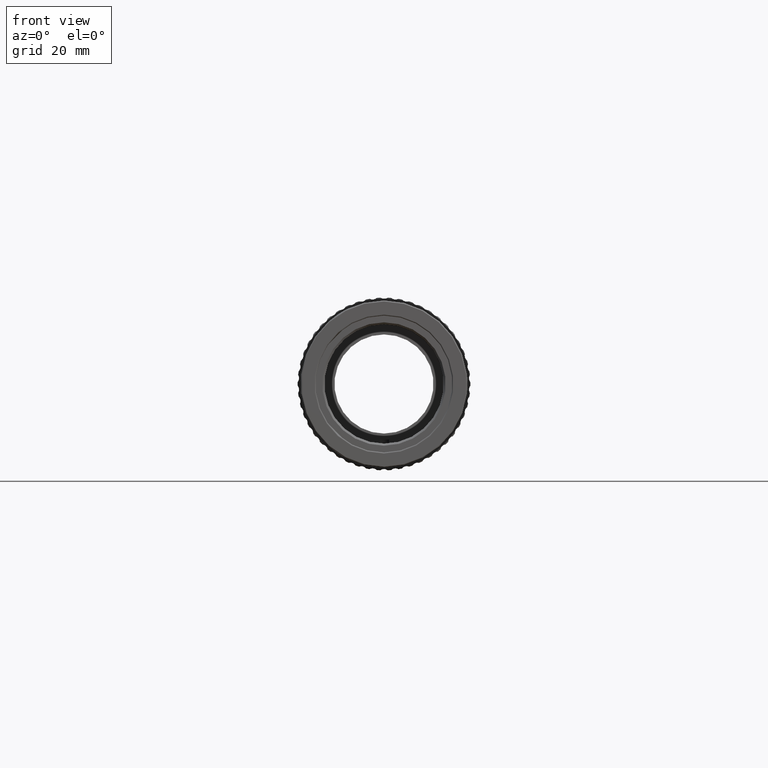
[diagram: clean part render]
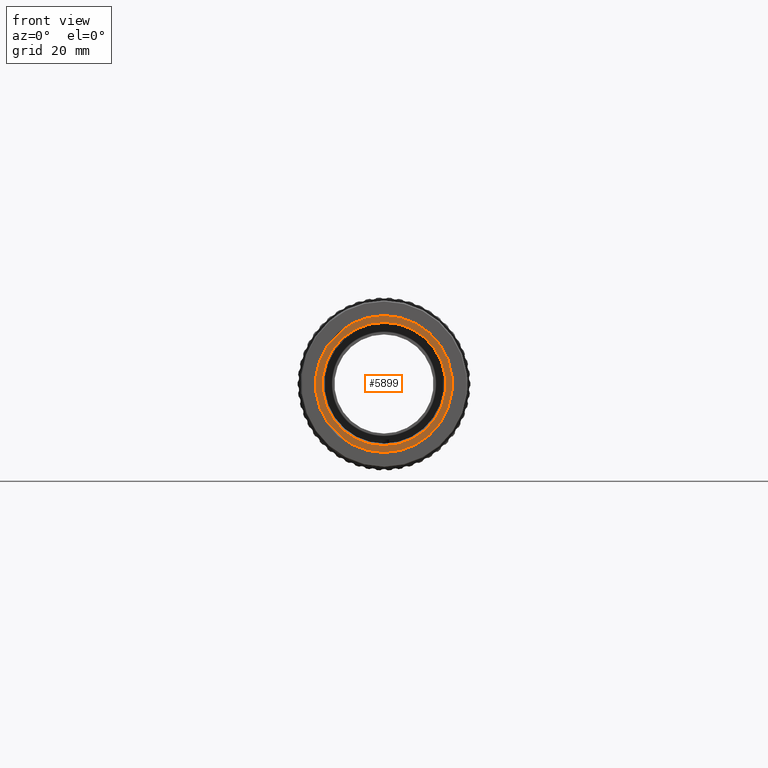
[diagram: same view with one face highlighted and labeled with its STEP entity id]
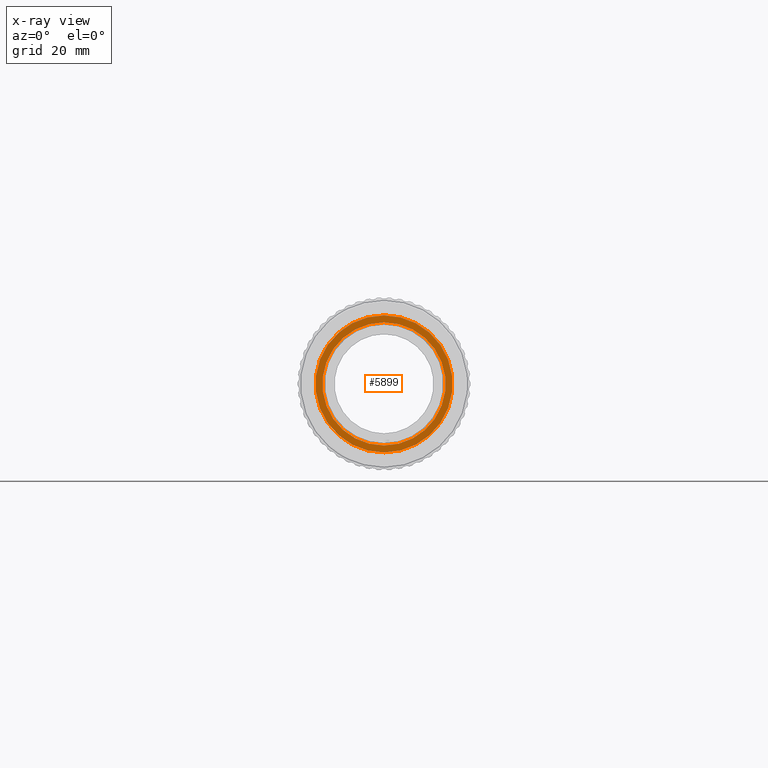
[diagram: x-ray of the same camera — body ghosted, the highlighted face saturated]
A machine part, front view. The second image highlights one B-rep face of the part: STEP entity #5899.
The next image is the same camera in x-ray: the body ghosted, the highlighted face saturated — about 0% of this face is hidden behind the body in this view.
In plain terms, the highlighted planar face has unit normal (0, -1, -0).
Its self-contained STEP definition (entity closure, byte-faithful):
#294 = PLANE ( 'NONE',  #4394 ) ;
#445 = ORIENTED_EDGE ( 'NONE', *, *, #1669, .T. ) ;
#829 = AXIS2_PLACEMENT_3D ( 'NONE', #7284, #12806, #873 ) ;
#873 = DIRECTION ( 'NONE',  ( 0.0000000000000000000, 0.0000000000000000000, -1.000000000000000000 ) ) ;
#1241 = EDGE_LOOP ( 'NONE', ( #8859 ) ) ;
#1342 = DIRECTION ( 'NONE',  ( 0.0000000000000000000, -1.000000000000000000, -0.0000000000000000000 ) ) ;
#1349 = CIRCLE ( 'NONE', #829, 16.64999999999963600 ) ;
#1669 = EDGE_CURVE ( 'NONE', #3020, #3020, #1349, .T. ) ;
#3008 = VERTEX_POINT ( 'NONE', #9006 ) ;
#3020 = VERTEX_POINT ( 'NONE', #10422 ) ;
#3263 = AXIS2_PLACEMENT_3D ( 'NONE', #9770, #3447, #10828 ) ;
#3447 = DIRECTION ( 'NONE',  ( -0.0000000000000000000, -1.000000000000000000, -0.0000000000000000000 ) ) ;
#4394 = AXIS2_PLACEMENT_3D ( 'NONE', #6629, #1342, #8731 ) ;
#5581 = FACE_BOUND ( 'NONE', #1241, .T. ) ;
#5899 = ADVANCED_FACE ( 'NONE', ( #13645, #5581 ), #294, .T. ) ;
#6462 = CIRCLE ( 'NONE', #3263, 14.99984799979938500 ) ;
#6629 = CARTESIAN_POINT ( 'NONE',  ( -68.32279011682176400, -19.71294781569414000, 0.0000000000000000000 ) ) ;
#7284 = CARTESIAN_POINT ( 'NONE',  ( -83.32263811662116400, -19.71294781569414000, 0.0000000000000000000 ) ) ;
#8565 = EDGE_CURVE ( 'NONE', #3008, #3008, #6462, .T. ) ;
#8731 = DIRECTION ( 'NONE',  ( 0.0000000000000000000, 0.0000000000000000000, -1.000000000000000000 ) ) ;
#8859 = ORIENTED_EDGE ( 'NONE', *, *, #8565, .F. ) ;
#9006 = CARTESIAN_POINT ( 'NONE',  ( -83.32263811662116400, -19.71294781569414000, -14.99984799979938500 ) ) ;
#9770 = CARTESIAN_POINT ( 'NONE',  ( -83.32263811662116400, -19.71294781569414000, 0.0000000000000000000 ) ) ;
#10422 = CARTESIAN_POINT ( 'NONE',  ( -83.32263811662116400, -19.71294781569414000, -16.64999999999963600 ) ) ;
#10828 = DIRECTION ( 'NONE',  ( 0.0000000000000000000, 0.0000000000000000000, -1.000000000000000000 ) ) ;
#10950 = EDGE_LOOP ( 'NONE', ( #445 ) ) ;
#12806 = DIRECTION ( 'NONE',  ( -0.0000000000000000000, -1.000000000000000000, -0.0000000000000000000 ) ) ;
#13645 = FACE_OUTER_BOUND ( 'NONE', #10950, .T. ) ;